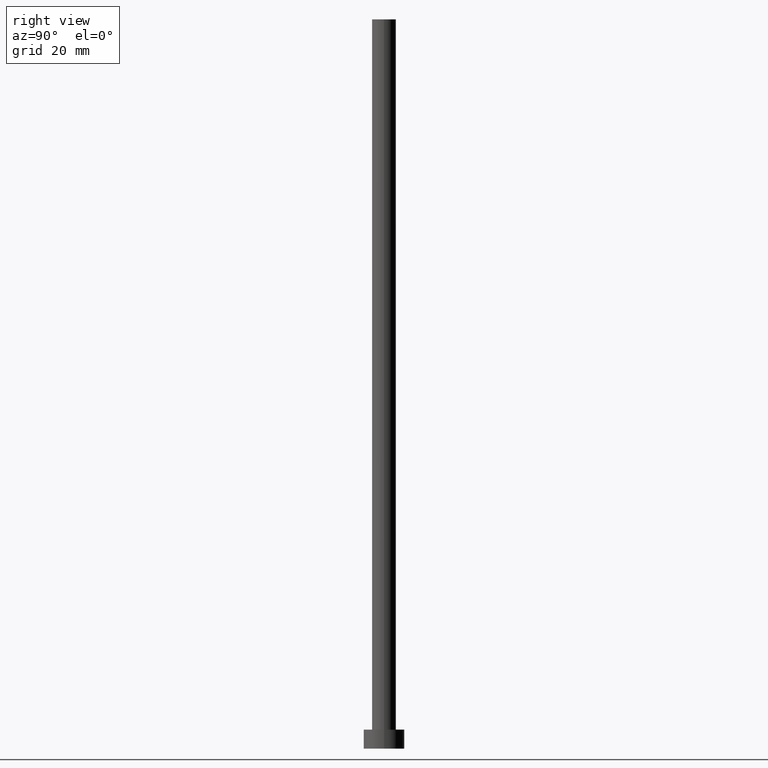
[diagram: clean part render]
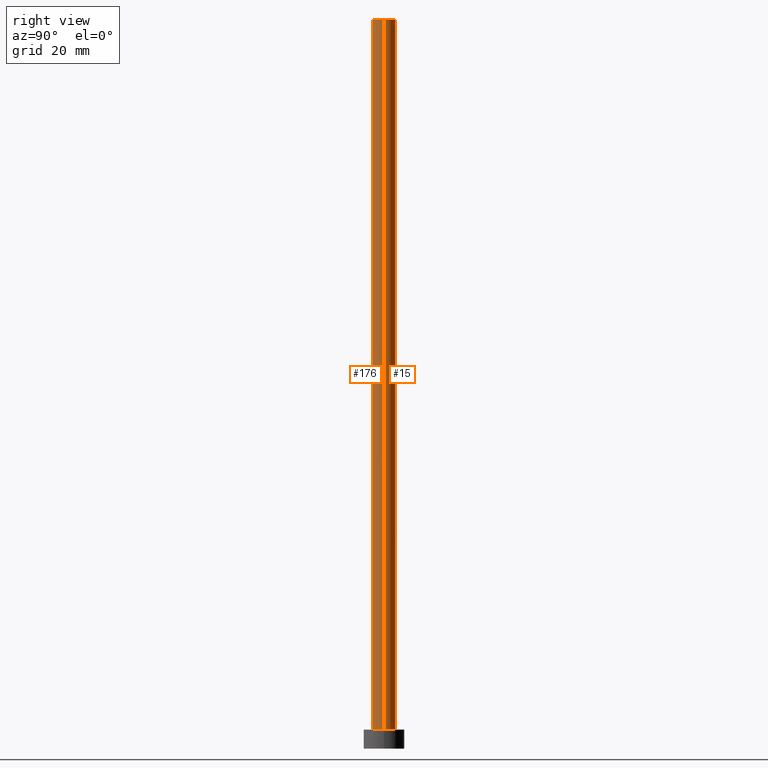
[diagram: same view with one multi-face feature highlighted, each face labeled with its STEP entity id]
A machine part, right view. The highlighted faces form ONE feature: a constant-radius fillet chain: 2 tangent blend faces with common blend radius 4.1 mm. The faces share edges in the B-rep.
Their STEP definitions:
[1] entity #176 (Cylinder):
#4 = VERTEX_POINT ( 'NONE', #69 ) ;
#11 = CARTESIAN_POINT ( 'NONE',  ( 0.000000000000000000, 0.000000000000000000, 250.0000000000000000 ) ) ;
#16 = LINE ( 'NONE', #52, #71 ) ;
#20 = DIRECTION ( 'NONE',  ( 0.000000000000000000, 0.000000000000000000, 1.000000000000000000 ) ) ;
#28 = VERTEX_POINT ( 'NONE', #99 ) ;
#29 = EDGE_LOOP ( 'NONE', ( #242, #91, #147, #151 ) ) ;
#33 = FACE_OUTER_BOUND ( 'NONE', #29, .T. ) ;
#39 = DIRECTION ( 'NONE',  ( -0.000000000000000000, -0.000000000000000000, -1.000000000000000000 ) ) ;
#52 = CARTESIAN_POINT ( 'NONE',  ( 4.099999999999999645, 5.021051876504147385E-16, 250.0000000000000000 ) ) ;
#60 = EDGE_CURVE ( 'NONE', #222, #28, #177, .T. ) ;
#69 = CARTESIAN_POINT ( 'NONE',  ( -4.099999999999999645, 0.000000000000000000, 6.500000000000000000 ) ) ;
#71 = VECTOR ( 'NONE', #152, 1000.000000000000000 ) ;
#81 = AXIS2_PLACEMENT_3D ( 'NONE', #119, #94, #172 ) ;
#85 = EDGE_CURVE ( 'NONE', #28, #188, #16, .T. ) ;
#91 = ORIENTED_EDGE ( 'NONE', *, *, #60, .F. ) ;
#92 = AXIS2_PLACEMENT_3D ( 'NONE', #11, #95, #195 ) ;
#94 = DIRECTION ( 'NONE',  ( -0.000000000000000000, -0.000000000000000000, -1.000000000000000000 ) ) ;
#95 = DIRECTION ( 'NONE',  ( 0.000000000000000000, 0.000000000000000000, 1.000000000000000000 ) ) ;
#99 = CARTESIAN_POINT ( 'NONE',  ( 4.099999999999999645, 5.021051876504147385E-16, 250.0000000000000000 ) ) ;
#100 = CIRCLE ( 'NONE', #154, 4.099999999999999645 ) ;
#116 = CYLINDRICAL_SURFACE ( 'NONE', #81, 4.099999999999999645 ) ;
#119 = CARTESIAN_POINT ( 'NONE',  ( 0.000000000000000000, 0.000000000000000000, 250.0000000000000000 ) ) ;
#120 = CARTESIAN_POINT ( 'NONE',  ( 0.000000000000000000, 0.000000000000000000, 6.500000000000000000 ) ) ;
#130 = LINE ( 'NONE', #211, #189 ) ;
#147 = ORIENTED_EDGE ( 'NONE', *, *, #163, .T. ) ;
#151 = ORIENTED_EDGE ( 'NONE', *, *, #243, .T. ) ;
#152 = DIRECTION ( 'NONE',  ( -0.000000000000000000, -0.000000000000000000, -1.000000000000000000 ) ) ;
#154 = AXIS2_PLACEMENT_3D ( 'NONE', #120, #20, #178 ) ;
#163 = EDGE_CURVE ( 'NONE', #222, #4, #130, .T. ) ;
#172 = DIRECTION ( 'NONE',  ( -1.000000000000000000, 0.000000000000000000, 0.000000000000000000 ) ) ;
#176 = ADVANCED_FACE ( 'NONE', ( #33 ), #116, .T. ) ;
#177 = CIRCLE ( 'NONE', #92, 4.099999999999999645 ) ;
#178 = DIRECTION ( 'NONE',  ( 1.000000000000000000, 0.000000000000000000, 0.000000000000000000 ) ) ;
#188 = VERTEX_POINT ( 'NONE', #253 ) ;
#189 = VECTOR ( 'NONE', #39, 1000.000000000000000 ) ;
#195 = DIRECTION ( 'NONE',  ( 1.000000000000000000, 0.000000000000000000, 0.000000000000000000 ) ) ;
#197 = CARTESIAN_POINT ( 'NONE',  ( -4.099999999999999645, 0.000000000000000000, 250.0000000000000000 ) ) ;
#211 = CARTESIAN_POINT ( 'NONE',  ( -4.099999999999999645, 0.000000000000000000, 250.0000000000000000 ) ) ;
#222 = VERTEX_POINT ( 'NONE', #197 ) ;
#242 = ORIENTED_EDGE ( 'NONE', *, *, #85, .F. ) ;
#243 = EDGE_CURVE ( 'NONE', #4, #188, #100, .T. ) ;
#253 = CARTESIAN_POINT ( 'NONE',  ( 4.099999999999999645, 5.021051876504147385E-16, 6.500000000000000000 ) ) ;
[2] entity #15 (Cylinder):
#3 = ORIENTED_EDGE ( 'NONE', *, *, #163, .F. ) ;
#4 = VERTEX_POINT ( 'NONE', #69 ) ;
#15 = ADVANCED_FACE ( 'NONE', ( #117 ), #158, .T. ) ;
#16 = LINE ( 'NONE', #52, #71 ) ;
#27 = ORIENTED_EDGE ( 'NONE', *, *, #208, .T. ) ;
#28 = VERTEX_POINT ( 'NONE', #99 ) ;
#39 = DIRECTION ( 'NONE',  ( -0.000000000000000000, -0.000000000000000000, -1.000000000000000000 ) ) ;
#52 = CARTESIAN_POINT ( 'NONE',  ( 4.099999999999999645, 5.021051876504147385E-16, 250.0000000000000000 ) ) ;
#61 = DIRECTION ( 'NONE',  ( 0.000000000000000000, 0.000000000000000000, 1.000000000000000000 ) ) ;
#69 = CARTESIAN_POINT ( 'NONE',  ( -4.099999999999999645, 0.000000000000000000, 6.500000000000000000 ) ) ;
#71 = VECTOR ( 'NONE', #152, 1000.000000000000000 ) ;
#72 = EDGE_LOOP ( 'NONE', ( #187, #109, #27, #3 ) ) ;
#85 = EDGE_CURVE ( 'NONE', #28, #188, #16, .T. ) ;
#93 = DIRECTION ( 'NONE',  ( -1.000000000000000000, 0.000000000000000000, 0.000000000000000000 ) ) ;
#99 = CARTESIAN_POINT ( 'NONE',  ( 4.099999999999999645, 5.021051876504147385E-16, 250.0000000000000000 ) ) ;
#109 = ORIENTED_EDGE ( 'NONE', *, *, #85, .T. ) ;
#117 = FACE_OUTER_BOUND ( 'NONE', #72, .T. ) ;
#130 = LINE ( 'NONE', #211, #189 ) ;
#135 = DIRECTION ( 'NONE',  ( 1.000000000000000000, 0.000000000000000000, 0.000000000000000000 ) ) ;
#137 = CARTESIAN_POINT ( 'NONE',  ( 0.000000000000000000, 0.000000000000000000, 6.500000000000000000 ) ) ;
#152 = DIRECTION ( 'NONE',  ( -0.000000000000000000, -0.000000000000000000, -1.000000000000000000 ) ) ;
#155 = EDGE_CURVE ( 'NONE', #28, #222, #233, .T. ) ;
#158 = CYLINDRICAL_SURFACE ( 'NONE', #206, 4.099999999999999645 ) ;
#163 = EDGE_CURVE ( 'NONE', #222, #4, #130, .T. ) ;
#166 = CIRCLE ( 'NONE', #181, 4.099999999999999645 ) ;
#181 = AXIS2_PLACEMENT_3D ( 'NONE', #137, #61, #218 ) ;
#187 = ORIENTED_EDGE ( 'NONE', *, *, #155, .F. ) ;
#188 = VERTEX_POINT ( 'NONE', #253 ) ;
#189 = VECTOR ( 'NONE', #39, 1000.000000000000000 ) ;
#190 = DIRECTION ( 'NONE',  ( 0.000000000000000000, 0.000000000000000000, 1.000000000000000000 ) ) ;
#192 = DIRECTION ( 'NONE',  ( -0.000000000000000000, -0.000000000000000000, -1.000000000000000000 ) ) ;
#197 = CARTESIAN_POINT ( 'NONE',  ( -4.099999999999999645, 0.000000000000000000, 250.0000000000000000 ) ) ;
#206 = AXIS2_PLACEMENT_3D ( 'NONE', #248, #192, #93 ) ;
#207 = AXIS2_PLACEMENT_3D ( 'NONE', #229, #190, #135 ) ;
#208 = EDGE_CURVE ( 'NONE', #188, #4, #166, .T. ) ;
#211 = CARTESIAN_POINT ( 'NONE',  ( -4.099999999999999645, 0.000000000000000000, 250.0000000000000000 ) ) ;
#218 = DIRECTION ( 'NONE',  ( 1.000000000000000000, 0.000000000000000000, 0.000000000000000000 ) ) ;
#222 = VERTEX_POINT ( 'NONE', #197 ) ;
#229 = CARTESIAN_POINT ( 'NONE',  ( 0.000000000000000000, 0.000000000000000000, 250.0000000000000000 ) ) ;
#233 = CIRCLE ( 'NONE', #207, 4.099999999999999645 ) ;
#248 = CARTESIAN_POINT ( 'NONE',  ( 0.000000000000000000, 0.000000000000000000, 250.0000000000000000 ) ) ;
#253 = CARTESIAN_POINT ( 'NONE',  ( 4.099999999999999645, 5.021051876504147385E-16, 6.500000000000000000 ) ) ;